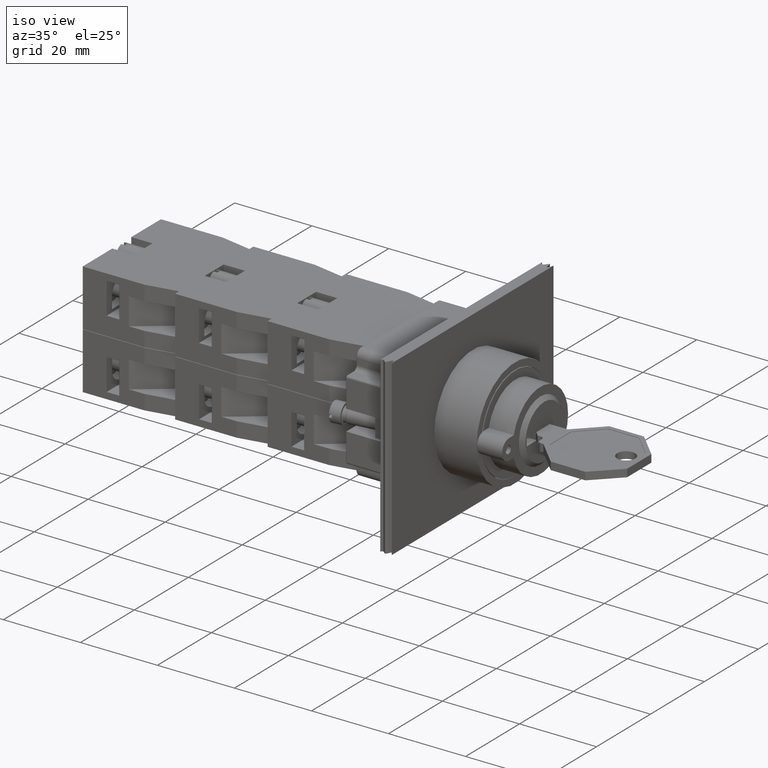
[diagram: clean part render]
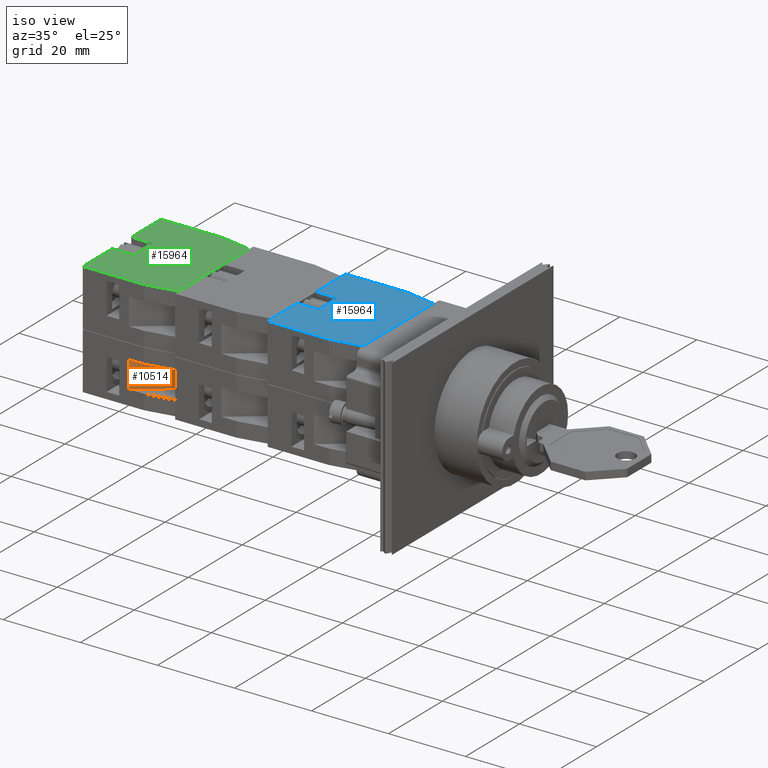
[diagram: same view with three faces highlighted in distinct colors, each labeled with its STEP entity id]
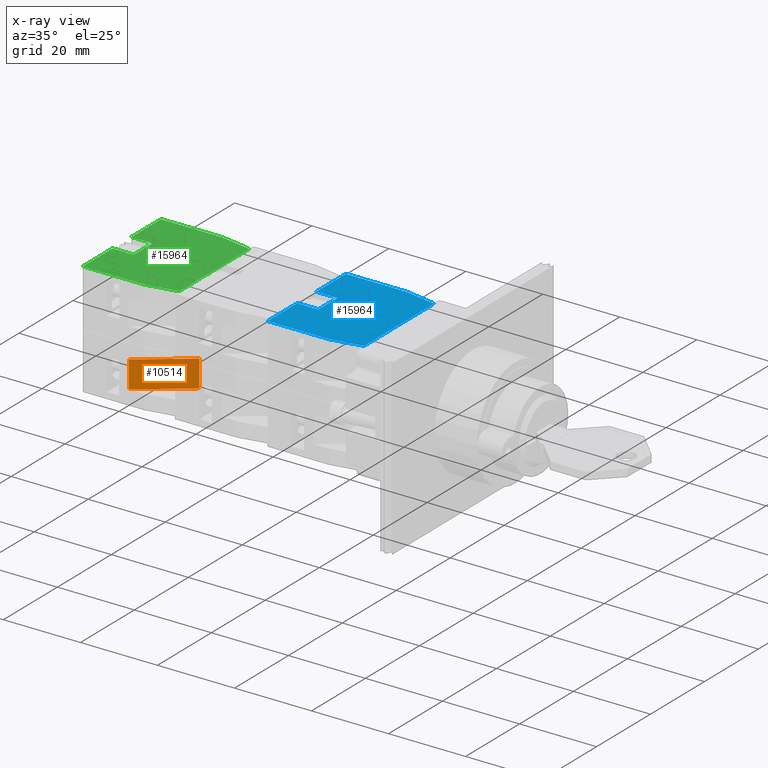
[diagram: x-ray of the same camera — body ghosted, the three highlighted faces saturated]
A machine part, iso view with three faces highlighted in distinct colors.
The next image is the same camera in x-ray (body ghosted, the three faces saturated) — at least one of them is partly hidden behind the body in this view.
Their STEP definitions:

[orange] entity #10514 — the highlighted planar face has unit normal (-0.6, 0.8, 0).
#10459=CARTESIAN_POINT('',(-24.936741828918464,-0.202926676720378,10.850000000000000));
#10460=VERTEX_POINT('',#10459);
#10467=CARTESIAN_POINT('',(-15.936741828918466,11.797073323279626,10.850000000000000));
#10468=VERTEX_POINT('',#10467);
#10469=CARTESIAN_POINT('',(-24.936741828918464,-0.202926676720378,10.850000000000000));
#10470=DIRECTION('',(0.600000000000000,0.800000000000000,0.0));
#10471=VECTOR('',#10470,15.000000000000002);
#10472=LINE('',#10469,#10471);
#10473=EDGE_CURVE('',#10460,#10468,#10472,.T.);
#10484=CARTESIAN_POINT('',(-15.936741828918466,11.797073323279626,7.350000000000000));
#10485=DIRECTION('',(-0.800000000000000,0.600000000000000,0.0));
#10486=DIRECTION('',(0.0,0.0,1.0));
#10487=AXIS2_PLACEMENT_3D('',#10484,#10485,#10486);
#10488=PLANE('',#10487);
#10489=CARTESIAN_POINT('',(-15.936741828918466,11.797073323279626,3.850000000000001));
#10490=VERTEX_POINT('',#10489);
#10491=CARTESIAN_POINT('',(-24.936741828918464,-0.202926676720378,3.850000000000001));
#10492=VERTEX_POINT('',#10491);
#10493=CARTESIAN_POINT('',(-15.936741828918466,11.797073323279626,3.850000000000001));
#10494=DIRECTION('',(-0.600000000000000,-0.800000000000000,0.0));
#10495=VECTOR('',#10494,15.000000000000002);
#10496=LINE('',#10493,#10495);
#10497=EDGE_CURVE('',#10490,#10492,#10496,.T.);
#10498=ORIENTED_EDGE('',*,*,#10497,.F.);
#10499=CARTESIAN_POINT('',(-15.936741828918466,11.797073323279626,10.850000000000000));
#10500=DIRECTION('',(0.0,0.0,-1.0));
#10501=VECTOR('',#10500,6.999999999999999);
#10502=LINE('',#10499,#10501);
#10503=EDGE_CURVE('',#10468,#10490,#10502,.T.);
#10504=ORIENTED_EDGE('',*,*,#10503,.F.);
#10505=ORIENTED_EDGE('',*,*,#10473,.F.);
#10506=CARTESIAN_POINT('',(-24.936741828918464,-0.202926676720378,3.850000000000001));
#10507=DIRECTION('',(0.0,0.0,1.0));
#10508=VECTOR('',#10507,6.999999999999999);
#10509=LINE('',#10506,#10508);
#10510=EDGE_CURVE('',#10492,#10460,#10509,.T.);
#10511=ORIENTED_EDGE('',*,*,#10510,.F.);
#10512=EDGE_LOOP('',(#10498,#10504,#10505,#10511));
#10513=FACE_OUTER_BOUND('',#10512,.T.);
#10514=ADVANCED_FACE('',(#10513),#10488,.F.);

[blue] entity #15964 — the highlighted planar face has unit normal (-0, 0, 1).
#14267=CARTESIAN_POINT('',(-44.936741828918457,7.797073323279626,14.699999999999999));
#14268=VERTEX_POINT('',#14267);
#14275=CARTESIAN_POINT('',(-44.936741828918471,23.797073323279623,14.699999999999999));
#14276=VERTEX_POINT('',#14275);
#14277=CARTESIAN_POINT('',(-44.936741828918457,7.797073323279626,14.699999999999999));
#14278=DIRECTION('',(0.0,1.0,0.0));
#14279=VECTOR('',#14278,15.999999999999996);
#14280=LINE('',#14277,#14279);
#14281=EDGE_CURVE('',#14268,#14276,#14280,.T.);
#14348=CARTESIAN_POINT('',(-43.436741828918457,-0.202926676720380,14.699999999999999));
#14349=VERTEX_POINT('',#14348);
#14356=CARTESIAN_POINT('',(-43.436741828918457,-0.202926676720380,14.699999999999999));
#14357=DIRECTION('',(-0.184288535050185,0.982872186934322,0.0));
#14358=VECTOR('',#14357,8.139410298049860);
#14359=LINE('',#14356,#14358);
#14360=EDGE_CURVE('',#14349,#14268,#14359,.T.);
#14499=CARTESIAN_POINT('',(-17.436741828918457,-0.202926676720377,14.699999999999999));
#14500=VERTEX_POINT('',#14499);
#14507=CARTESIAN_POINT('',(-17.436741828918457,-0.202926676720377,14.699999999999999));
#14508=DIRECTION('',(-1.0,0.0,0.0));
#14509=VECTOR('',#14508,26.0);
#14510=LINE('',#14507,#14509);
#14511=EDGE_CURVE('',#14500,#14349,#14510,.T.);
#14592=CARTESIAN_POINT('',(-15.936741828918466,7.797073323279626,14.699999999999999));
#14593=VERTEX_POINT('',#14592);
#14600=CARTESIAN_POINT('',(-15.936741828918466,7.797073323279626,14.699999999999999));
#14601=DIRECTION('',(-0.184288535050184,-0.982872186934322,0.0));
#14602=VECTOR('',#14601,8.139410298049855);
#14603=LINE('',#14600,#14602);
#14604=EDGE_CURVE('',#14593,#14500,#14603,.T.);
#15699=CARTESIAN_POINT('',(-26.936741828918468,18.297073323279626,14.699999999999999));
#15700=VERTEX_POINT('',#15699);
#15709=CARTESIAN_POINT('',(-26.936741828918468,23.797073323279626,14.699999999999999));
#15710=VERTEX_POINT('',#15709);
#15711=CARTESIAN_POINT('',(-26.936741828918468,23.797073323279626,14.699999999999999));
#15712=DIRECTION('',(0.0,-1.0,0.0));
#15713=VECTOR('',#15712,5.500000000000000);
#15714=LINE('',#15711,#15713);
#15715=EDGE_CURVE('',#15710,#15700,#15714,.T.);
#15770=CARTESIAN_POINT('',(-33.936741828918464,18.297073323279619,14.699999999999999));
#15771=VERTEX_POINT('',#15770);
#15779=CARTESIAN_POINT('',(-33.936741828918464,23.797073323279623,14.699999999999999));
#15780=VERTEX_POINT('',#15779);
#15787=CARTESIAN_POINT('',(-33.936741828918464,18.297073323279619,14.699999999999999));
#15788=DIRECTION('',(0.0,1.0,0.0));
#15789=VECTOR('',#15788,5.500000000000004);
#15790=LINE('',#15787,#15789);
#15791=EDGE_CURVE('',#15771,#15780,#15790,.T.);
#15804=CARTESIAN_POINT('',(-26.936741828918468,18.297073323279626,14.699999999999999));
#15805=DIRECTION('',(-1.0,0.0,0.0));
#15806=VECTOR('',#15805,6.999999999999996);
#15807=LINE('',#15804,#15806);
#15808=EDGE_CURVE('',#15700,#15771,#15807,.T.);
#15824=CARTESIAN_POINT('',(-15.936741828918466,23.797073323279626,14.699999999999999));
#15825=VERTEX_POINT('',#15824);
#15826=CARTESIAN_POINT('',(-26.936741828918468,23.797073323279626,14.699999999999999));
#15827=DIRECTION('',(1.0,0.0,0.0));
#15828=VECTOR('',#15827,11.000000000000002);
#15829=LINE('',#15826,#15828);
#15830=EDGE_CURVE('',#15710,#15825,#15829,.T.);
#15847=CARTESIAN_POINT('',(-44.936741828918471,23.797073323279623,14.699999999999999));
#15848=DIRECTION('',(1.0,0.0,0.0));
#15849=VECTOR('',#15848,11.000000000000007);
#15850=LINE('',#15847,#15849);
#15851=EDGE_CURVE('',#14276,#15780,#15850,.T.);
#15895=CARTESIAN_POINT('',(-15.936741828918466,23.797073323279626,14.699999999999999));
#15896=DIRECTION('',(0.0,-1.0,0.0));
#15897=VECTOR('',#15896,16.0);
#15898=LINE('',#15895,#15897);
#15899=EDGE_CURVE('',#15825,#14593,#15898,.T.);
#15947=CARTESIAN_POINT('',(-30.436741828918457,12.124046801833057,14.699999999999999));
#15948=DIRECTION('',(0.0,0.0,1.0));
#15949=DIRECTION('',(1.0,0.0,0.0));
#15950=AXIS2_PLACEMENT_3D('',#15947,#15948,#15949);
#15951=PLANE('',#15950);
#15952=ORIENTED_EDGE('',*,*,#15791,.T.);
#15953=ORIENTED_EDGE('',*,*,#15851,.F.);
#15954=ORIENTED_EDGE('',*,*,#14281,.F.);
#15955=ORIENTED_EDGE('',*,*,#14360,.F.);
#15956=ORIENTED_EDGE('',*,*,#14511,.F.);
#15957=ORIENTED_EDGE('',*,*,#14604,.F.);
#15958=ORIENTED_EDGE('',*,*,#15899,.F.);
#15959=ORIENTED_EDGE('',*,*,#15830,.F.);
#15960=ORIENTED_EDGE('',*,*,#15715,.T.);
#15961=ORIENTED_EDGE('',*,*,#15808,.T.);
#15962=EDGE_LOOP('',(#15952,#15953,#15954,#15955,#15956,#15957,#15958,#15959,#15960,#15961));
#15963=FACE_OUTER_BOUND('',#15962,.T.);
#15964=ADVANCED_FACE('',(#15963),#15951,.T.);

[green] entity #15964 — the highlighted planar face has unit normal (-0, -0, 1).
#14267=CARTESIAN_POINT('',(-44.936741828918457,7.797073323279626,14.699999999999999));
#14268=VERTEX_POINT('',#14267);
#14275=CARTESIAN_POINT('',(-44.936741828918471,23.797073323279623,14.699999999999999));
#14276=VERTEX_POINT('',#14275);
#14277=CARTESIAN_POINT('',(-44.936741828918457,7.797073323279626,14.699999999999999));
#14278=DIRECTION('',(0.0,1.0,0.0));
#14279=VECTOR('',#14278,15.999999999999996);
#14280=LINE('',#14277,#14279);
#14281=EDGE_CURVE('',#14268,#14276,#14280,.T.);
#14348=CARTESIAN_POINT('',(-43.436741828918457,-0.202926676720380,14.699999999999999));
#14349=VERTEX_POINT('',#14348);
#14356=CARTESIAN_POINT('',(-43.436741828918457,-0.202926676720380,14.699999999999999));
#14357=DIRECTION('',(-0.184288535050185,0.982872186934322,0.0));
#14358=VECTOR('',#14357,8.139410298049860);
#14359=LINE('',#14356,#14358);
#14360=EDGE_CURVE('',#14349,#14268,#14359,.T.);
#14499=CARTESIAN_POINT('',(-17.436741828918457,-0.202926676720377,14.699999999999999));
#14500=VERTEX_POINT('',#14499);
#14507=CARTESIAN_POINT('',(-17.436741828918457,-0.202926676720377,14.699999999999999));
#14508=DIRECTION('',(-1.0,0.0,0.0));
#14509=VECTOR('',#14508,26.0);
#14510=LINE('',#14507,#14509);
#14511=EDGE_CURVE('',#14500,#14349,#14510,.T.);
#14592=CARTESIAN_POINT('',(-15.936741828918466,7.797073323279626,14.699999999999999));
#14593=VERTEX_POINT('',#14592);
#14600=CARTESIAN_POINT('',(-15.936741828918466,7.797073323279626,14.699999999999999));
#14601=DIRECTION('',(-0.184288535050184,-0.982872186934322,0.0));
#14602=VECTOR('',#14601,8.139410298049855);
#14603=LINE('',#14600,#14602);
#14604=EDGE_CURVE('',#14593,#14500,#14603,.T.);
#15699=CARTESIAN_POINT('',(-26.936741828918468,18.297073323279626,14.699999999999999));
#15700=VERTEX_POINT('',#15699);
#15709=CARTESIAN_POINT('',(-26.936741828918468,23.797073323279626,14.699999999999999));
#15710=VERTEX_POINT('',#15709);
#15711=CARTESIAN_POINT('',(-26.936741828918468,23.797073323279626,14.699999999999999));
#15712=DIRECTION('',(0.0,-1.0,0.0));
#15713=VECTOR('',#15712,5.500000000000000);
#15714=LINE('',#15711,#15713);
#15715=EDGE_CURVE('',#15710,#15700,#15714,.T.);
#15770=CARTESIAN_POINT('',(-33.936741828918464,18.297073323279619,14.699999999999999));
#15771=VERTEX_POINT('',#15770);
#15779=CARTESIAN_POINT('',(-33.936741828918464,23.797073323279623,14.699999999999999));
#15780=VERTEX_POINT('',#15779);
#15787=CARTESIAN_POINT('',(-33.936741828918464,18.297073323279619,14.699999999999999));
#15788=DIRECTION('',(0.0,1.0,0.0));
#15789=VECTOR('',#15788,5.500000000000004);
#15790=LINE('',#15787,#15789);
#15791=EDGE_CURVE('',#15771,#15780,#15790,.T.);
#15804=CARTESIAN_POINT('',(-26.936741828918468,18.297073323279626,14.699999999999999));
#15805=DIRECTION('',(-1.0,0.0,0.0));
#15806=VECTOR('',#15805,6.999999999999996);
#15807=LINE('',#15804,#15806);
#15808=EDGE_CURVE('',#15700,#15771,#15807,.T.);
#15824=CARTESIAN_POINT('',(-15.936741828918466,23.797073323279626,14.699999999999999));
#15825=VERTEX_POINT('',#15824);
#15826=CARTESIAN_POINT('',(-26.936741828918468,23.797073323279626,14.699999999999999));
#15827=DIRECTION('',(1.0,0.0,0.0));
#15828=VECTOR('',#15827,11.000000000000002);
#15829=LINE('',#15826,#15828);
#15830=EDGE_CURVE('',#15710,#15825,#15829,.T.);
#15847=CARTESIAN_POINT('',(-44.936741828918471,23.797073323279623,14.699999999999999));
#15848=DIRECTION('',(1.0,0.0,0.0));
#15849=VECTOR('',#15848,11.000000000000007);
#15850=LINE('',#15847,#15849);
#15851=EDGE_CURVE('',#14276,#15780,#15850,.T.);
#15895=CARTESIAN_POINT('',(-15.936741828918466,23.797073323279626,14.699999999999999));
#15896=DIRECTION('',(0.0,-1.0,0.0));
#15897=VECTOR('',#15896,16.0);
#15898=LINE('',#15895,#15897);
#15899=EDGE_CURVE('',#15825,#14593,#15898,.T.);
#15947=CARTESIAN_POINT('',(-30.436741828918457,12.124046801833057,14.699999999999999));
#15948=DIRECTION('',(0.0,0.0,1.0));
#15949=DIRECTION('',(1.0,0.0,0.0));
#15950=AXIS2_PLACEMENT_3D('',#15947,#15948,#15949);
#15951=PLANE('',#15950);
#15952=ORIENTED_EDGE('',*,*,#15791,.T.);
#15953=ORIENTED_EDGE('',*,*,#15851,.F.);
#15954=ORIENTED_EDGE('',*,*,#14281,.F.);
#15955=ORIENTED_EDGE('',*,*,#14360,.F.);
#15956=ORIENTED_EDGE('',*,*,#14511,.F.);
#15957=ORIENTED_EDGE('',*,*,#14604,.F.);
#15958=ORIENTED_EDGE('',*,*,#15899,.F.);
#15959=ORIENTED_EDGE('',*,*,#15830,.F.);
#15960=ORIENTED_EDGE('',*,*,#15715,.T.);
#15961=ORIENTED_EDGE('',*,*,#15808,.T.);
#15962=EDGE_LOOP('',(#15952,#15953,#15954,#15955,#15956,#15957,#15958,#15959,#15960,#15961));
#15963=FACE_OUTER_BOUND('',#15962,.T.);
#15964=ADVANCED_FACE('',(#15963),#15951,.T.);